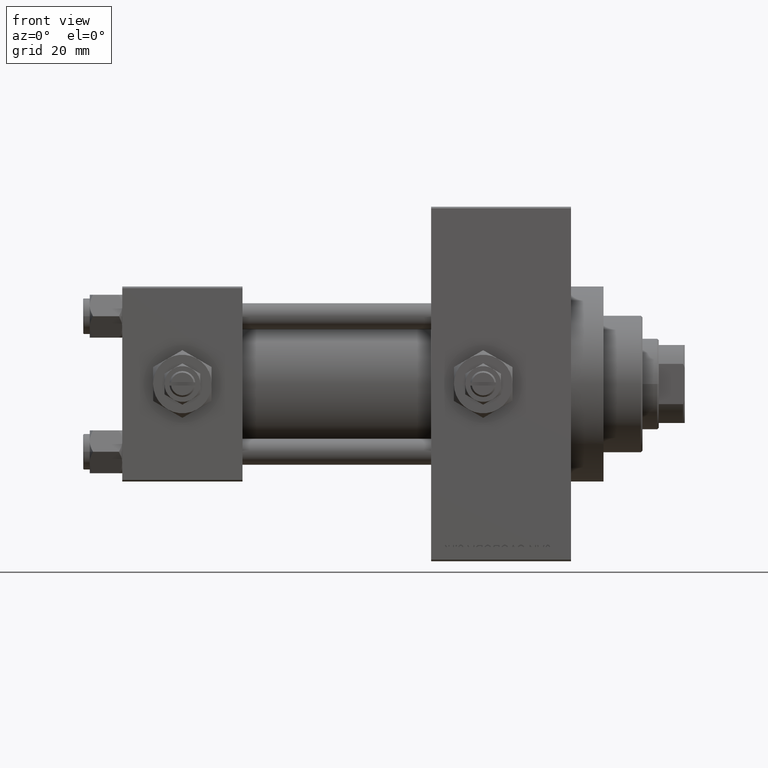
[diagram: clean part render]
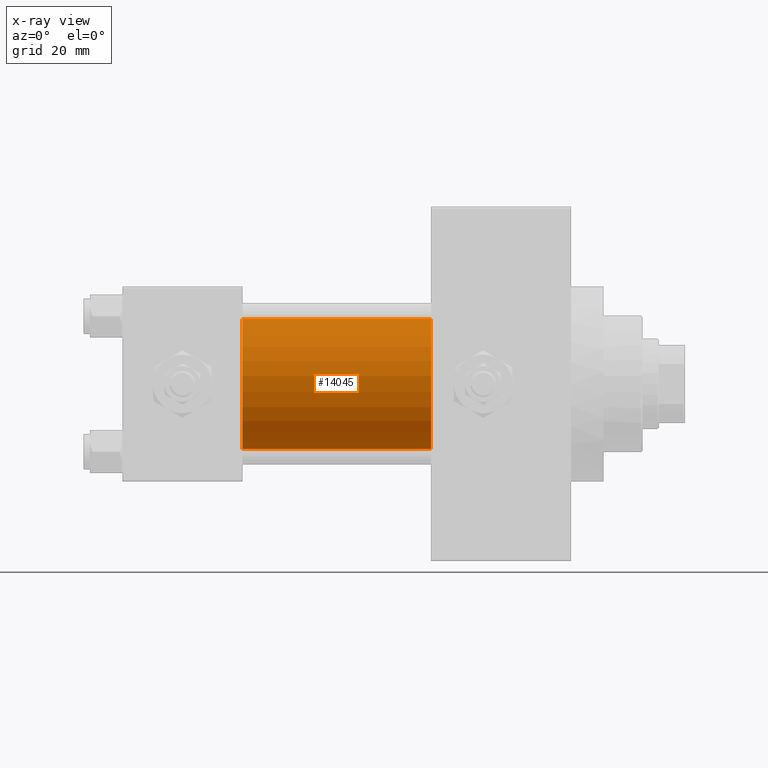
[diagram: x-ray — body ghosted, one internal face saturated and labeled with its STEP entity id]
A machine part, front view, then the same camera in x-ray: the body is ghosted and one INTERNAL B-rep face — a face not visible from any outside direction — is saturated and labeled: STEP entity #14045.
In plain terms, the highlighted cylindrical surface (partial cylindrical patch) has radius 20 mm, axis along (-1, -0, -0).
Its self-contained STEP definition (entity closure, byte-faithful):
#1437 = ORIENTED_EDGE ( 'NONE', *, *, #16567, .F. ) ;
#2434 = FACE_OUTER_BOUND ( 'NONE', #31464, .T. ) ;
#2934 = DIRECTION ( 'NONE',  ( 1.000000000000000000, 0.000000000000000000, 0.000000000000000000 ) ) ;
#3262 = LINE ( 'NONE', #18794, #35071 ) ;
#3746 = AXIS2_PLACEMENT_3D ( 'NONE', #17724, #40072, #9226 ) ;
#5884 = CARTESIAN_POINT ( 'NONE',  ( 95.00000000000000000, -2.602085213965210642E-15, 20.00000000000000000 ) ) ;
#6688 = DIRECTION ( 'NONE',  ( 0.000000000000000000, 0.000000000000000000, -1.000000000000000000 ) ) ;
#8234 = DIRECTION ( 'NONE',  ( 0.000000000000000000, 0.000000000000000000, -1.000000000000000000 ) ) ;
#9226 = DIRECTION ( 'NONE',  ( 0.000000000000000000, 0.000000000000000000, 1.000000000000000000 ) ) ;
#10859 = CARTESIAN_POINT ( 'NONE',  ( 37.00000000000000000, -2.602085213965210642E-15, 20.00000000000000000 ) ) ;
#14045 = ADVANCED_FACE ( 'NONE', ( #2434 ), #36053, .F. ) ;
#16019 = CARTESIAN_POINT ( 'NONE',  ( 95.00000000000000000, -2.602085213965210642E-15, 0.000000000000000000 ) ) ;
#16567 = EDGE_CURVE ( 'NONE', #32460, #28780, #19890, .T. ) ;
#17171 = DIRECTION ( 'NONE',  ( -1.000000000000000000, -0.000000000000000000, -0.000000000000000000 ) ) ;
#17724 = CARTESIAN_POINT ( 'NONE',  ( 95.00000000000000000, -2.602085213965210642E-15, 0.000000000000000000 ) ) ;
#18062 = CARTESIAN_POINT ( 'NONE',  ( 95.00000000000000000, -1.527916156705046464E-16, -20.00000000000000000 ) ) ;
#18794 = CARTESIAN_POINT ( 'NONE',  ( 95.00000000000000000, -1.527916156705046464E-16, -20.00000000000000000 ) ) ;
#19890 = CIRCLE ( 'NONE', #48716, 20.00000000000000000 ) ;
#20518 = ORIENTED_EDGE ( 'NONE', *, *, #44717, .F. ) ;
#21000 = VECTOR ( 'NONE', #17171, 1000.000000000000000 ) ;
#21377 = ORIENTED_EDGE ( 'NONE', *, *, #40595, .T. ) ;
#25272 = CARTESIAN_POINT ( 'NONE',  ( 37.00000000000000000, -2.602085213965210642E-15, 0.000000000000000000 ) ) ;
#28780 = VERTEX_POINT ( 'NONE', #48945 ) ;
#31304 = DIRECTION ( 'NONE',  ( 1.000000000000000000, 0.000000000000000000, 0.000000000000000000 ) ) ;
#31464 = EDGE_LOOP ( 'NONE', ( #21377, #31750, #1437, #20518 ) ) ;
#31750 = ORIENTED_EDGE ( 'NONE', *, *, #32760, .T. ) ;
#32460 = VERTEX_POINT ( 'NONE', #10859 ) ;
#32627 = VERTEX_POINT ( 'NONE', #18062 ) ;
#32760 = EDGE_CURVE ( 'NONE', #32627, #28780, #3262, .T. ) ;
#35071 = VECTOR ( 'NONE', #37616, 1000.000000000000000 ) ;
#36053 = CYLINDRICAL_SURFACE ( 'NONE', #3746, 20.00000000000000000 ) ;
#37616 = DIRECTION ( 'NONE',  ( -1.000000000000000000, -0.000000000000000000, -0.000000000000000000 ) ) ;
#38341 = CARTESIAN_POINT ( 'NONE',  ( 95.00000000000000000, -2.602085213965210642E-15, 20.00000000000000000 ) ) ;
#39641 = VERTEX_POINT ( 'NONE', #38341 ) ;
#40072 = DIRECTION ( 'NONE',  ( -1.000000000000000000, -0.000000000000000000, -0.000000000000000000 ) ) ;
#40595 = EDGE_CURVE ( 'NONE', #39641, #32627, #47279, .T. ) ;
#43014 = LINE ( 'NONE', #5884, #21000 ) ;
#44065 = AXIS2_PLACEMENT_3D ( 'NONE', #16019, #31304, #8234 ) ;
#44717 = EDGE_CURVE ( 'NONE', #39641, #32460, #43014, .T. ) ;
#47279 = CIRCLE ( 'NONE', #44065, 20.00000000000000000 ) ;
#48716 = AXIS2_PLACEMENT_3D ( 'NONE', #25272, #2934, #6688 ) ;
#48945 = CARTESIAN_POINT ( 'NONE',  ( 37.00000000000000000, -1.527916156705046464E-16, -20.00000000000000000 ) ) ;